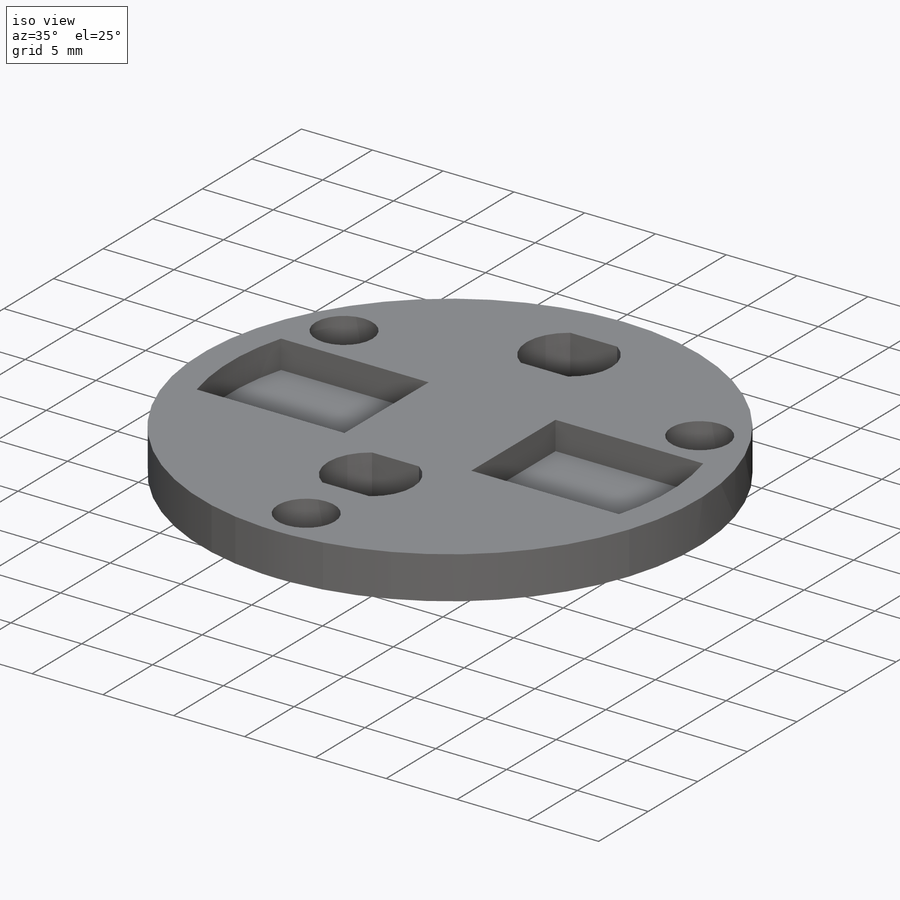
[diagram: iso view]
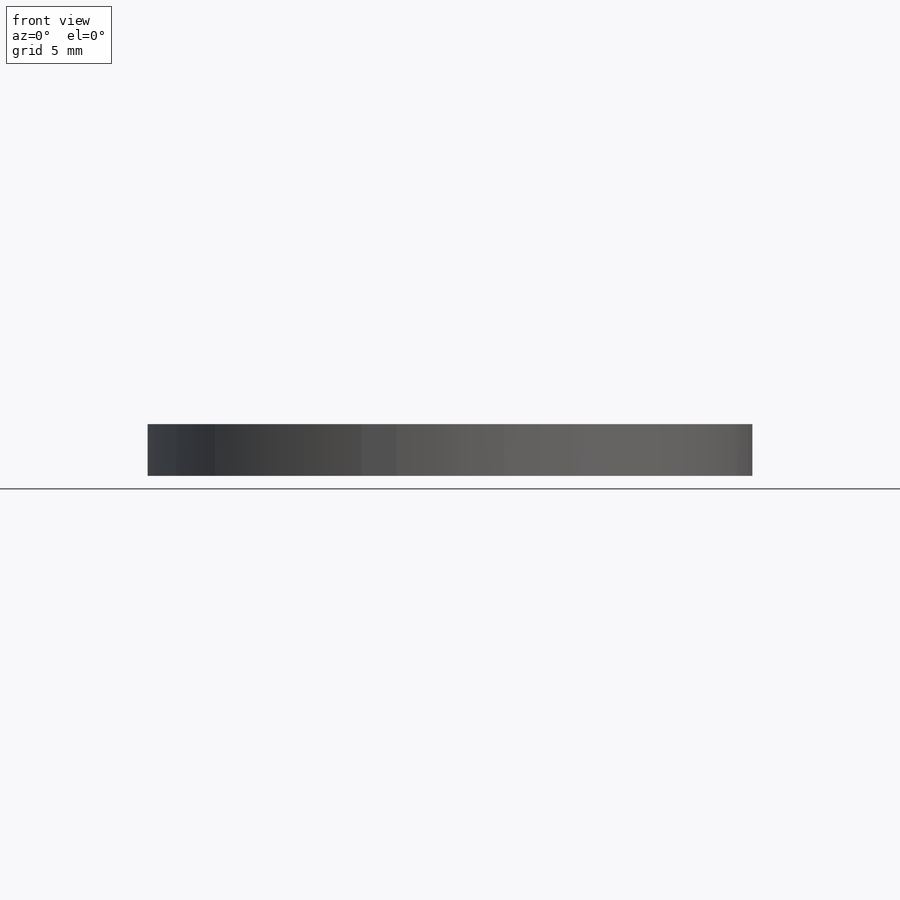
[diagram: front view]
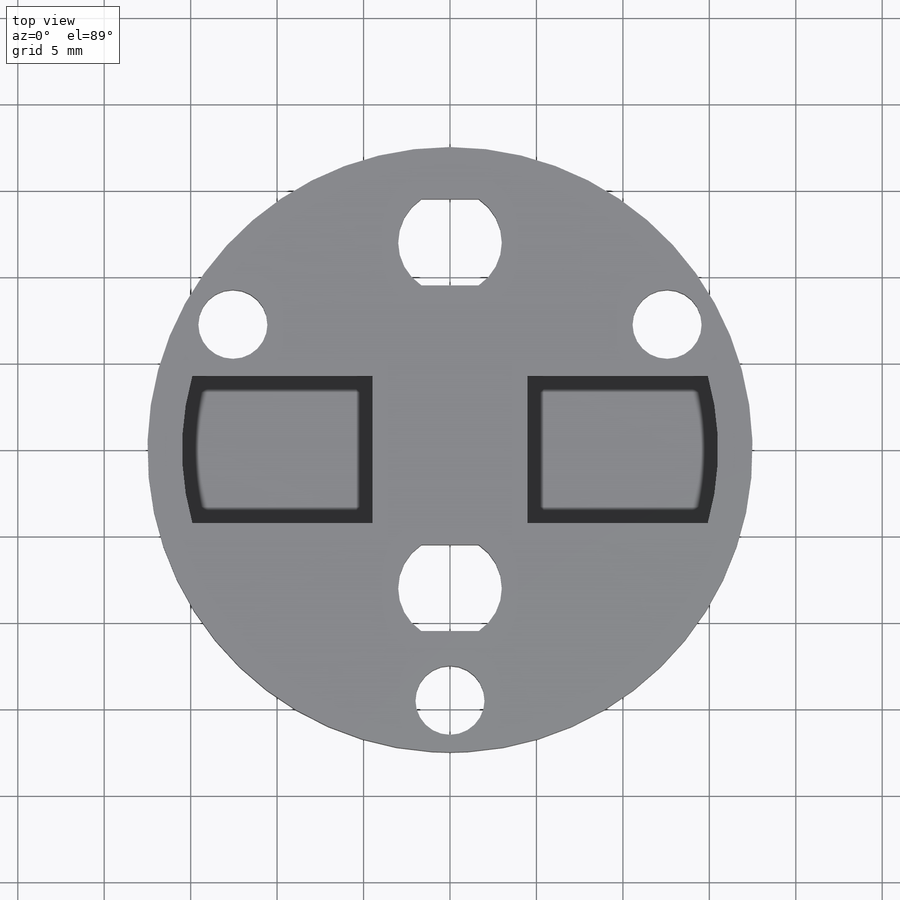
[diagram: top view]
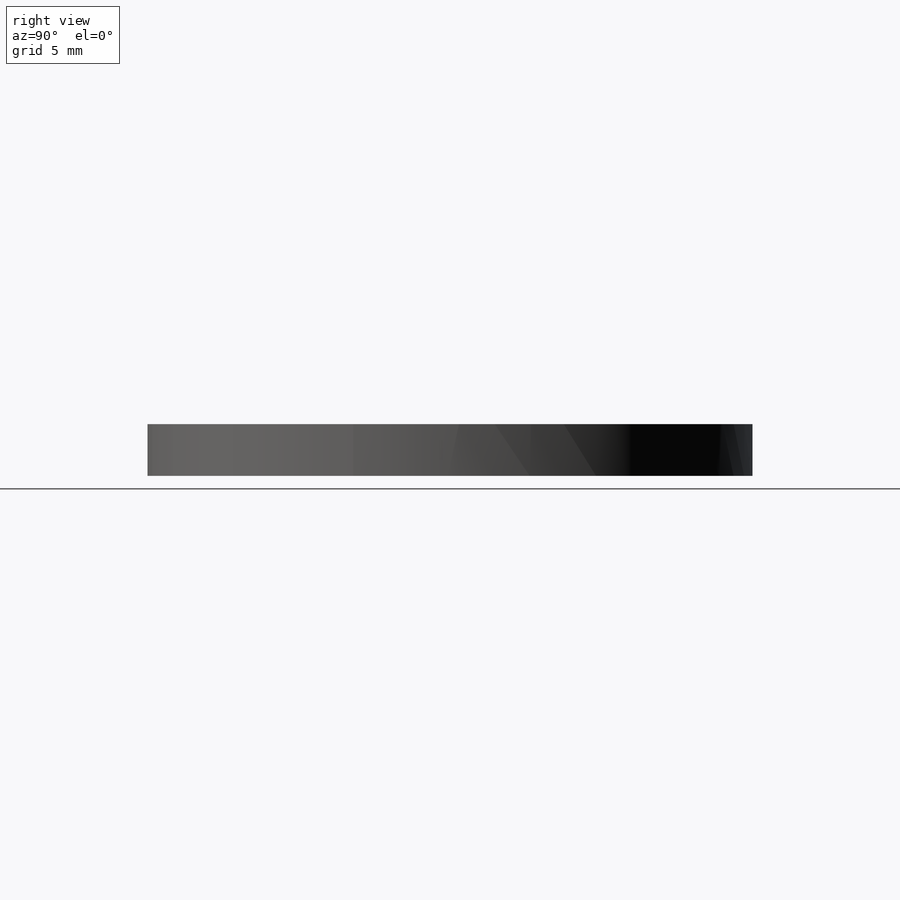
[diagram: right view]
SOLIDWORKS PART (.sldprt)
format: sldprt  version: not decoded by parser v0  size: 244,224 bytes
history: native  units: mm
features: sketch x4, plane x3, cut_extrude x3, material x1, extrude x1 (+9 scaffold rows collapsed)
feature tree (21):
  scaffold x9  (default folders/planes/origin — collapsed)
  material  "Material <sin especificar>"
  plane  "Alzado"
  plane  "Planta"
  plane  "Vista lateral"
  sketch  "Croquis1"  dims[D1=35.0mm D2=4.0mm]
  extrude  "Saliente-Extruir1"  Depth=3mm
  sketch  "Croquis2"  dims[D1=4.25mm D2=12.5mm D3=2.0mm]
  cut_extrude  "Cortar-Extruir1"  Depth=2mm
  sketch  "Croquis3"  dims[c1.D8=0.5mm c1.D10=0.5mm c1.D1=22.3mm c1.D3=4.0mm c1.D4=22.3mm c2.D3=4.0mm c2.D5=4.0mm c2.D6=4.0mm c2.D7=29.0mm c2.D1=4.0mm c3.D3=35.0mm c3.D1=6.0mm c3.D2=4.0mm c4.D3=3.0mm c4.D4=4.0mm c4.D5=2.0mm c4.D6=2.0mm c4.D7=0.0mm c4.D9=0.0mm c4.D2=~21.659824mm c5.D2=15.0deg c5.D9=25.0mm c5.D4=25.0mm c6.D2=~21.971418mm c7.D2=60.0deg c7.D3=~26.143001mm c8.D3=~55.646335deg c8.D2=~23.567466mm c9.D2=60.0deg c9.D4=3.0mm]
  cut_extrude  "Cortar-Extruir2"  [1 undecoded]
  sketch  "Croquis4"  dims[c1.D1=6.0mm c1.D2=6.0mm c1.D3=2.5mm c1.D4=2.5mm c1.D5=2.5mm c1.D6=2.5mm c1.D7=11.0mm c1.D8=9.0mm c2.D7=1.5mm c2.D8=1.5mm c2.D9=10.15mm c3.D7=12.0mm c3.D8=8.0mm]
  cut_extrude  "Cortar-Extruir3"  Depth=10mm
decode coverage: 7 of 8 modeling features carry decoded parameters
note: ~ marks probable driven/reference dimensions
note: 1 parameter value undecoded
note: suppression state not decoded; provenance and decode notes live in map.json
